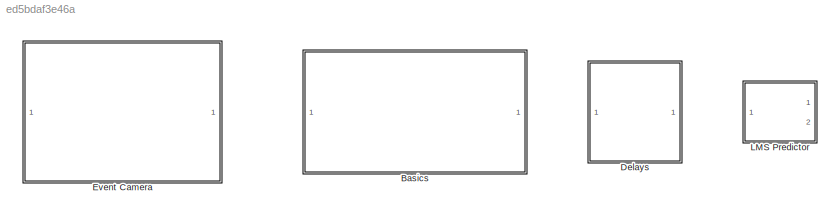
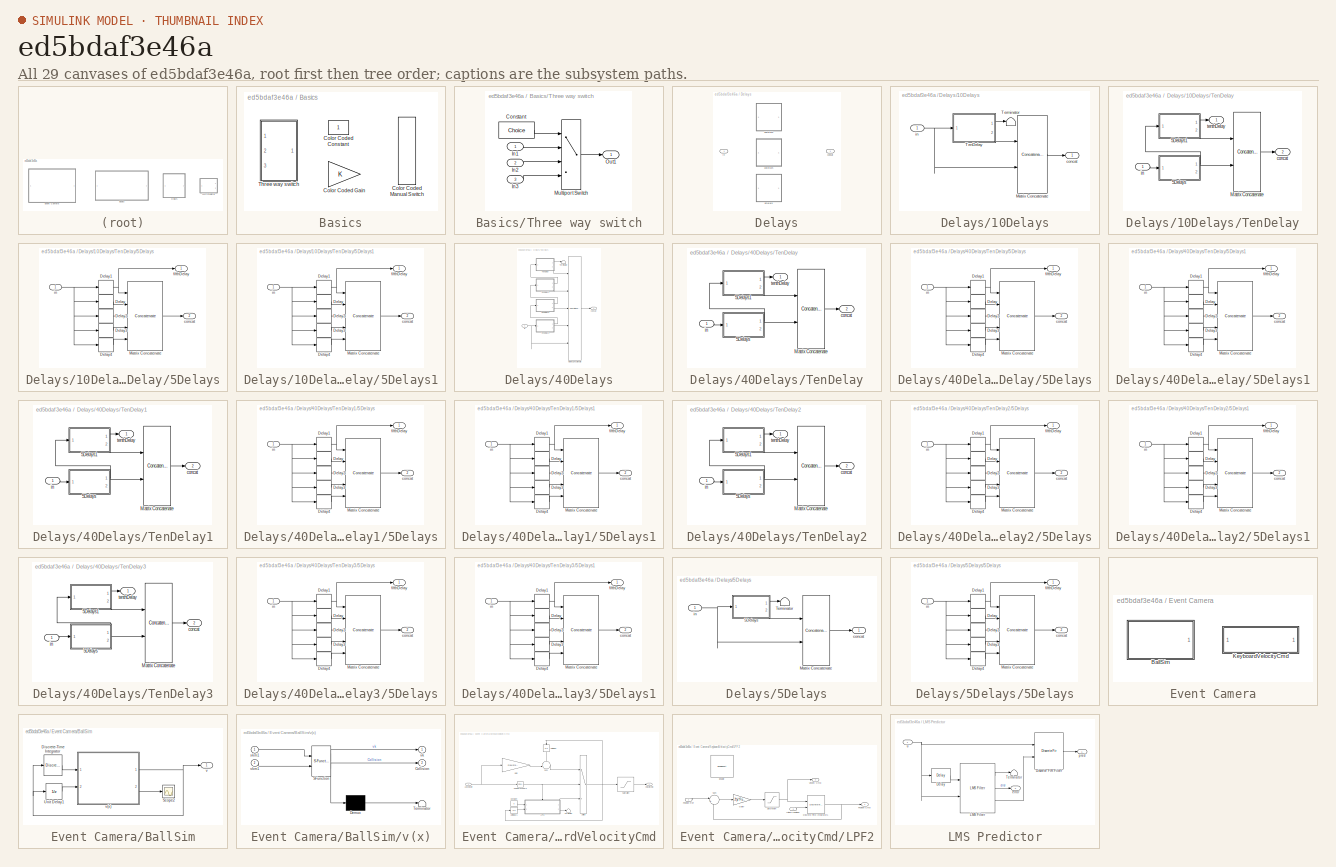
[diagram: thumbnail index - all 29 canvases of the model, root first then tree order]
MODEL slx_ed5bdaf3e46a
KIND library
CONFIG AbsTol = auto
CONFIG EnableMultiTasking = off
CONFIG FixedStep = auto
CONFIG MaxStep = auto
CONFIG MinStep = auto
CONFIG RelTol = 1e-3
CONFIG SampleTimeConstraint = Unconstrained
CONFIG SolverName = VariableStepAuto
CONFIG StartTime = 0.0
CONFIG StopTime = 10.0
BLOCK [SubSystem] Basics
  Ports = []
  RequestExecContextInheritance = off
BLOCK [Constant] Basics/Color Coded Constant
  OpenFcn = if get_param(gcbh,'value')-48 set_param(gcbh,'value','0','backgroundcolor','red');\nelse set_param(gcbh,'value','1','backgroundcolor','green');                       \nend
  OutDataTypeStr = boolean
BLOCK [Gain] Basics/Color Coded Gain
  OpenFcn = if get_param(gcbh,'gain')-48 set_param(gcbh,'gain','0','backgroundcolor','red');\nelse set_param(gcbh,'gain','1','backgroundcolor','green');                      \nend
  OutDataTypeStr = Inherit: Same as input
BLOCK [ManualSwitch] Basics/Color Coded Manual Switch
  OpenFcn = sw = get_param(gcb,'sw');\nif strcmp(sw,'1')\nset_param(gcb,'sw','0');\nelse\nset_param(gcb,'sw','1');\nend\nif strcmp(sw,'1')\n    set_param(gcb,'backgroundcolor','red')\nelse\n    set_param(gcb,'backgroundcolor','green')\nend
BLOCK [SubSystem] Basics/Three way switch
  OpenFcn = Choice=get_param(gcbh,'Choice');\nChoice=str2num(Choice)+1;\nif Choice==4, Choice=1; end\nset_param(gcbh,'Choice',num2str(Choice));
  Ports = [3, 1]
  RequestExecContextInheritance = off
BLOCK [Constant] Basics/Three way switch/Constant
  Value = Choice
BLOCK [Inport] Basics/Three way switch/In1
BLOCK [Inport] Basics/Three way switch/In2
  Port = 2
BLOCK [Inport] Basics/Three way switch/In3
  Port = 3
BLOCK [MultiPortSwitch] Basics/Three way switch/Multiport Switch
  InputSameDT = off
  Ports = [4, 1]
  SaturateOnIntegerOverflow = off
BLOCK [Outport] Basics/Three way switch/Out1
BLOCK [SubSystem] Delays
  LabelModeActiveChoice = 10Delays
  Ports = [1, 1]
  RequestExecContextInheritance = off
  Variant = on
  VariantControl = Choice
  VariantControlMode = label
BLOCK [SubSystem] Delays/10Delays
  Ports = [1, 1]
  RequestExecContextInheritance = off
  VariantControl = 10Delays
BLOCK [Concatenate] Delays/10Delays/Matrix Concatenate
  ConcatenateDimension = 4
  Mode = Multidimensional array
  Ports = [2, 1]
BLOCK [SubSystem] Delays/10Delays/TenDelay
  Ports = [1, 2]
  RequestExecContextInheritance = off
BLOCK [SubSystem] Delays/10Delays/TenDelay/5Delays
  Ports = [1, 2]
  RequestExecContextInheritance = off
BLOCK [Delay] Delays/10Delays/TenDelay/5Delays/Delay
  DelayLength = 4
  InputPortMap = u0
  Ports = [1, 1]
BLOCK [Delay] Delays/10Delays/TenDelay/5Delays/Delay1
  DelayLength = 5
  InputPortMap = u0
  Ports = [1, 1]
BLOCK [Delay] Delays/10Delays/TenDelay/5Delays/Delay2
  DelayLength = 3
  InputPortMap = u0
  Ports = [1, 1]
BLOCK [Delay] Delays/10Delays/TenDelay/5Delays/Delay3
  InputPortMap = u0
  Ports = [1, 1]
BLOCK [Delay] Delays/10Delays/TenDelay/5Delays/Delay4
  DelayLength = 1
  InputPortMap = u0
  Ports = [1, 1]
BLOCK [Concatenate] Delays/10Delays/TenDelay/5Delays/Matrix Concatenate
  ConcatenateDimension = 4
  Mode = Multidimensional array
  NumInputs = 5
  Ports = [5, 1]
BLOCK [Outport] Delays/10Delays/TenDelay/5Delays/concat
  Port = 2
BLOCK [Outport] Delays/10Delays/TenDelay/5Delays/fifthDelay
BLOCK [Inport] Delays/10Delays/TenDelay/5Delays/in
BLOCK [SubSystem] Delays/10Delays/TenDelay/5Delays1
  Ports = [1, 2]
  RequestExecContextInheritance = off
BLOCK [Delay] Delays/10Delays/TenDelay/5Delays1/Delay
  DelayLength = 4
  InputPortMap = u0
  Ports = [1, 1]
BLOCK [Delay] Delays/10Delays/TenDelay/5Delays1/Delay1
  DelayLength = 5
  InputPortMap = u0
  Ports = [1, 1]
BLOCK [Delay] Delays/10Delays/TenDelay/5Delays1/Delay2
  DelayLength = 3
  InputPortMap = u0
  Ports = [1, 1]
BLOCK [Delay] Delays/10Delays/TenDelay/5Delays1/Delay3
  InputPortMap = u0
  Ports = [1, 1]
BLOCK [Delay] Delays/10Delays/TenDelay/5Delays1/Delay4
  DelayLength = 1
  InputPortMap = u0
  Ports = [1, 1]
BLOCK [Concatenate] Delays/10Delays/TenDelay/5Delays1/Matrix Concatenate
  ConcatenateDimension = 4
  Mode = Multidimensional array
  NumInputs = 5
  Ports = [5, 1]
BLOCK [Outport] Delays/10Delays/TenDelay/5Delays1/concat
  Port = 2
BLOCK [Outport] Delays/10Delays/TenDelay/5Delays1/fifthDelay
BLOCK [Inport] Delays/10Delays/TenDelay/5Delays1/in
BLOCK [Concatenate] Delays/10Delays/TenDelay/Matrix Concatenate
  ConcatenateDimension = 4
  Mode = Multidimensional array
  Ports = [2, 1]
BLOCK [Outport] Delays/10Delays/TenDelay/concat
  Port = 2
BLOCK [Inport] Delays/10Delays/TenDelay/in
BLOCK [Outport] Delays/10Delays/TenDelay/tenthDelay
BLOCK [Terminator] Delays/10Delays/Terminator
BLOCK [Outport] Delays/10Delays/concat
BLOCK [Inport] Delays/10Delays/in
BLOCK [SubSystem] Delays/40Delays
  Ports = [1, 1]
  RequestExecContextInheritance = off
  VariantControl = 40Delays
BLOCK [Concatenate] Delays/40Delays/Matrix Concatenate
  ConcatenateDimension = 4
  Mode = Multidimensional array
  NumInputs = 5
  Ports = [5, 1]
BLOCK [SubSystem] Delays/40Delays/TenDelay
  Ports = [1, 2]
  RequestExecContextInheritance = off
BLOCK [SubSystem] Delays/40Delays/TenDelay/5Delays
  Ports = [1, 2]
  RequestExecContextInheritance = off
BLOCK [Delay] Delays/40Delays/TenDelay/5Delays/Delay
  DelayLength = 4
  InputPortMap = u0
  Ports = [1, 1]
BLOCK [Delay] Delays/40Delays/TenDelay/5Delays/Delay1
  DelayLength = 5
  InputPortMap = u0
  Ports = [1, 1]
BLOCK [Delay] Delays/40Delays/TenDelay/5Delays/Delay2
  DelayLength = 3
  InputPortMap = u0
  Ports = [1, 1]
BLOCK [Delay] Delays/40Delays/TenDelay/5Delays/Delay3
  InputPortMap = u0
  Ports = [1, 1]
BLOCK [Delay] Delays/40Delays/TenDelay/5Delays/Delay4
  DelayLength = 1
  InputPortMap = u0
  Ports = [1, 1]
BLOCK [Concatenate] Delays/40Delays/TenDelay/5Delays/Matrix Concatenate
  ConcatenateDimension = 4
  Mode = Multidimensional array
  NumInputs = 5
  Ports = [5, 1]
BLOCK [Outport] Delays/40Delays/TenDelay/5Delays/concat
  Port = 2
BLOCK [Outport] Delays/40Delays/TenDelay/5Delays/fifthDelay
BLOCK [Inport] Delays/40Delays/TenDelay/5Delays/in
BLOCK [SubSystem] Delays/40Delays/TenDelay/5Delays1
  Ports = [1, 2]
  RequestExecContextInheritance = off
BLOCK [Delay] Delays/40Delays/TenDelay/5Delays1/Delay
  DelayLength = 4
  InputPortMap = u0
  Ports = [1, 1]
BLOCK [Delay] Delays/40Delays/TenDelay/5Delays1/Delay1
  DelayLength = 5
  InputPortMap = u0
  Ports = [1, 1]
BLOCK [Delay] Delays/40Delays/TenDelay/5Delays1/Delay2
  DelayLength = 3
  InputPortMap = u0
  Ports = [1, 1]
BLOCK [Delay] Delays/40Delays/TenDelay/5Delays1/Delay3
  InputPortMap = u0
  Ports = [1, 1]
BLOCK [Delay] Delays/40Delays/TenDelay/5Delays1/Delay4
  DelayLength = 1
  InputPortMap = u0
  Ports = [1, 1]
BLOCK [Concatenate] Delays/40Delays/TenDelay/5Delays1/Matrix Concatenate
  ConcatenateDimension = 4
  Mode = Multidimensional array
  NumInputs = 5
  Ports = [5, 1]
BLOCK [Outport] Delays/40Delays/TenDelay/5Delays1/concat
  Port = 2
BLOCK [Outport] Delays/40Delays/TenDelay/5Delays1/fifthDelay
BLOCK [Inport] Delays/40Delays/TenDelay/5Delays1/in
BLOCK [Concatenate] Delays/40Delays/TenDelay/Matrix Concatenate
  ConcatenateDimension = 4
  Mode = Multidimensional array
  Ports = [2, 1]
BLOCK [Outport] Delays/40Delays/TenDelay/concat
  Port = 2
BLOCK [Inport] Delays/40Delays/TenDelay/in
BLOCK [Outport] Delays/40Delays/TenDelay/tenthDelay
BLOCK [SubSystem] Delays/40Delays/TenDelay1
  Ports = [1, 2]
  RequestExecContextInheritance = off
BLOCK [SubSystem] Delays/40Delays/TenDelay1/5Delays
  Ports = [1, 2]
  RequestExecContextInheritance = off
BLOCK [Delay] Delays/40Delays/TenDelay1/5Delays/Delay
  DelayLength = 4
  InputPortMap = u0
  Ports = [1, 1]
BLOCK [Delay] Delays/40Delays/TenDelay1/5Delays/Delay1
  DelayLength = 5
  InputPortMap = u0
  Ports = [1, 1]
BLOCK [Delay] Delays/40Delays/TenDelay1/5Delays/Delay2
  DelayLength = 3
  InputPortMap = u0
  Ports = [1, 1]
BLOCK [Delay] Delays/40Delays/TenDelay1/5Delays/Delay3
  InputPortMap = u0
  Ports = [1, 1]
BLOCK [Delay] Delays/40Delays/TenDelay1/5Delays/Delay4
  DelayLength = 1
  InputPortMap = u0
  Ports = [1, 1]
BLOCK [Concatenate] Delays/40Delays/TenDelay1/5Delays/Matrix Concatenate
  ConcatenateDimension = 4
  Mode = Multidimensional array
  NumInputs = 5
  Ports = [5, 1]
BLOCK [Outport] Delays/40Delays/TenDelay1/5Delays/concat
  Port = 2
BLOCK [Outport] Delays/40Delays/TenDelay1/5Delays/fifthDelay
BLOCK [Inport] Delays/40Delays/TenDelay1/5Delays/in
BLOCK [SubSystem] Delays/40Delays/TenDelay1/5Delays1
  Ports = [1, 2]
  RequestExecContextInheritance = off
BLOCK [Delay] Delays/40Delays/TenDelay1/5Delays1/Delay
  DelayLength = 4
  InputPortMap = u0
  Ports = [1, 1]
BLOCK [Delay] Delays/40Delays/TenDelay1/5Delays1/Delay1
  DelayLength = 5
  InputPortMap = u0
  Ports = [1, 1]
BLOCK [Delay] Delays/40Delays/TenDelay1/5Delays1/Delay2
  DelayLength = 3
  InputPortMap = u0
  Ports = [1, 1]
BLOCK [Delay] Delays/40Delays/TenDelay1/5Delays1/Delay3
  InputPortMap = u0
  Ports = [1, 1]
BLOCK [Delay] Delays/40Delays/TenDelay1/5Delays1/Delay4
  DelayLength = 1
  InputPortMap = u0
  Ports = [1, 1]
BLOCK [Concatenate] Delays/40Delays/TenDelay1/5Delays1/Matrix Concatenate
  ConcatenateDimension = 4
  Mode = Multidimensional array
  NumInputs = 5
  Ports = [5, 1]
BLOCK [Outport] Delays/40Delays/TenDelay1/5Delays1/concat
  Port = 2
BLOCK [Outport] Delays/40Delays/TenDelay1/5Delays1/fifthDelay
BLOCK [Inport] Delays/40Delays/TenDelay1/5Delays1/in
BLOCK [Concatenate] Delays/40Delays/TenDelay1/Matrix Concatenate
  ConcatenateDimension = 4
  Mode = Multidimensional array
  Ports = [2, 1]
BLOCK [Outport] Delays/40Delays/TenDelay1/concat
  Port = 2
BLOCK [Inport] Delays/40Delays/TenDelay1/in
BLOCK [Outport] Delays/40Delays/TenDelay1/tenthDelay
BLOCK [SubSystem] Delays/40Delays/TenDelay2
  Ports = [1, 2]
  RequestExecContextInheritance = off
BLOCK [SubSystem] Delays/40Delays/TenDelay2/5Delays
  Ports = [1, 2]
  RequestExecContextInheritance = off
BLOCK [Delay] Delays/40Delays/TenDelay2/5Delays/Delay
  DelayLength = 4
  InputPortMap = u0
  Ports = [1, 1]
BLOCK [Delay] Delays/40Delays/TenDelay2/5Delays/Delay1
  DelayLength = 5
  InputPortMap = u0
  Ports = [1, 1]
BLOCK [Delay] Delays/40Delays/TenDelay2/5Delays/Delay2
  DelayLength = 3
  InputPortMap = u0
  Ports = [1, 1]
BLOCK [Delay] Delays/40Delays/TenDelay2/5Delays/Delay3
  InputPortMap = u0
  Ports = [1, 1]
BLOCK [Delay] Delays/40Delays/TenDelay2/5Delays/Delay4
  DelayLength = 1
  InputPortMap = u0
  Ports = [1, 1]
BLOCK [Concatenate] Delays/40Delays/TenDelay2/5Delays/Matrix Concatenate
  ConcatenateDimension = 4
  Mode = Multidimensional array
  NumInputs = 5
  Ports = [5, 1]
BLOCK [Outport] Delays/40Delays/TenDelay2/5Delays/concat
  Port = 2
BLOCK [Outport] Delays/40Delays/TenDelay2/5Delays/fifthDelay
BLOCK [Inport] Delays/40Delays/TenDelay2/5Delays/in
BLOCK [SubSystem] Delays/40Delays/TenDelay2/5Delays1
  Ports = [1, 2]
  RequestExecContextInheritance = off
BLOCK [Delay] Delays/40Delays/TenDelay2/5Delays1/Delay
  DelayLength = 4
  InputPortMap = u0
  Ports = [1, 1]
BLOCK [Delay] Delays/40Delays/TenDelay2/5Delays1/Delay1
  DelayLength = 5
  InputPortMap = u0
  Ports = [1, 1]
BLOCK [Delay] Delays/40Delays/TenDelay2/5Delays1/Delay2
  DelayLength = 3
  InputPortMap = u0
  Ports = [1, 1]
BLOCK [Delay] Delays/40Delays/TenDelay2/5Delays1/Delay3
  InputPortMap = u0
  Ports = [1, 1]
BLOCK [Delay] Delays/40Delays/TenDelay2/5Delays1/Delay4
  DelayLength = 1
  InputPortMap = u0
  Ports = [1, 1]
BLOCK [Concatenate] Delays/40Delays/TenDelay2/5Delays1/Matrix Concatenate
  ConcatenateDimension = 4
  Mode = Multidimensional array
  NumInputs = 5
  Ports = [5, 1]
BLOCK [Outport] Delays/40Delays/TenDelay2/5Delays1/concat
  Port = 2
BLOCK [Outport] Delays/40Delays/TenDelay2/5Delays1/fifthDelay
BLOCK [Inport] Delays/40Delays/TenDelay2/5Delays1/in
BLOCK [Concatenate] Delays/40Delays/TenDelay2/Matrix Concatenate
  ConcatenateDimension = 4
  Mode = Multidimensional array
  Ports = [2, 1]
BLOCK [Outport] Delays/40Delays/TenDelay2/concat
  Port = 2
BLOCK [Inport] Delays/40Delays/TenDelay2/in
BLOCK [Outport] Delays/40Delays/TenDelay2/tenthDelay
BLOCK [SubSystem] Delays/40Delays/TenDelay3
  Ports = [1, 2]
  RequestExecContextInheritance = off
BLOCK [SubSystem] Delays/40Delays/TenDelay3/5Delays
  Ports = [1, 2]
  RequestExecContextInheritance = off
BLOCK [Delay] Delays/40Delays/TenDelay3/5Delays/Delay
  DelayLength = 4
  InputPortMap = u0
  Ports = [1, 1]
BLOCK [Delay] Delays/40Delays/TenDelay3/5Delays/Delay1
  DelayLength = 5
  InputPortMap = u0
  Ports = [1, 1]
BLOCK [Delay] Delays/40Delays/TenDelay3/5Delays/Delay2
  DelayLength = 3
  InputPortMap = u0
  Ports = [1, 1]
BLOCK [Delay] Delays/40Delays/TenDelay3/5Delays/Delay3
  InputPortMap = u0
  Ports = [1, 1]
BLOCK [Delay] Delays/40Delays/TenDelay3/5Delays/Delay4
  DelayLength = 1
  InputPortMap = u0
  Ports = [1, 1]
BLOCK [Concatenate] Delays/40Delays/TenDelay3/5Delays/Matrix Concatenate
  ConcatenateDimension = 4
  Mode = Multidimensional array
  NumInputs = 5
  Ports = [5, 1]
BLOCK [Outport] Delays/40Delays/TenDelay3/5Delays/concat
  Port = 2
BLOCK [Outport] Delays/40Delays/TenDelay3/5Delays/fifthDelay
BLOCK [Inport] Delays/40Delays/TenDelay3/5Delays/in
BLOCK [SubSystem] Delays/40Delays/TenDelay3/5Delays1
  Ports = [1, 2]
  RequestExecContextInheritance = off
BLOCK [Delay] Delays/40Delays/TenDelay3/5Delays1/Delay
  DelayLength = 4
  InputPortMap = u0
  Ports = [1, 1]
BLOCK [Delay] Delays/40Delays/TenDelay3/5Delays1/Delay1
  DelayLength = 5
  InputPortMap = u0
  Ports = [1, 1]
BLOCK [Delay] Delays/40Delays/TenDelay3/5Delays1/Delay2
  DelayLength = 3
  InputPortMap = u0
  Ports = [1, 1]
BLOCK [Delay] Delays/40Delays/TenDelay3/5Delays1/Delay3
  InputPortMap = u0
  Ports = [1, 1]
BLOCK [Delay] Delays/40Delays/TenDelay3/5Delays1/Delay4
  DelayLength = 1
  InputPortMap = u0
  Ports = [1, 1]
BLOCK [Concatenate] Delays/40Delays/TenDelay3/5Delays1/Matrix Concatenate
  ConcatenateDimension = 4
  Mode = Multidimensional array
  NumInputs = 5
  Ports = [5, 1]
BLOCK [Outport] Delays/40Delays/TenDelay3/5Delays1/concat
  Port = 2
BLOCK [Outport] Delays/40Delays/TenDelay3/5Delays1/fifthDelay
BLOCK [Inport] Delays/40Delays/TenDelay3/5Delays1/in
BLOCK [Concatenate] Delays/40Delays/TenDelay3/Matrix Concatenate
  ConcatenateDimension = 4
  Mode = Multidimensional array
  Ports = [2, 1]
BLOCK [Outport] Delays/40Delays/TenDelay3/concat
  Port = 2
BLOCK [Inport] Delays/40Delays/TenDelay3/in
BLOCK [Outport] Delays/40Delays/TenDelay3/tenthDelay
BLOCK [Terminator] Delays/40Delays/Terminator
BLOCK [Outport] Delays/40Delays/concat
BLOCK [Inport] Delays/40Delays/in
BLOCK [SubSystem] Delays/5Delays
  Ports = [1, 1]
  RequestExecContextInheritance = off
  VariantControl = 5Delays
BLOCK [SubSystem] Delays/5Delays/5Delays
  Ports = [1, 2]
  RequestExecContextInheritance = off
BLOCK [Delay] Delays/5Delays/5Delays/Delay
  DelayLength = 4
  InputPortMap = u0
  Ports = [1, 1]
BLOCK [Delay] Delays/5Delays/5Delays/Delay1
  DelayLength = 5
  InputPortMap = u0
  Ports = [1, 1]
BLOCK [Delay] Delays/5Delays/5Delays/Delay2
  DelayLength = 3
  InputPortMap = u0
  Ports = [1, 1]
BLOCK [Delay] Delays/5Delays/5Delays/Delay3
  InputPortMap = u0
  Ports = [1, 1]
BLOCK [Delay] Delays/5Delays/5Delays/Delay4
  DelayLength = 1
  InputPortMap = u0
  Ports = [1, 1]
BLOCK [Concatenate] Delays/5Delays/5Delays/Matrix Concatenate
  ConcatenateDimension = 4
  Mode = Multidimensional array
  NumInputs = 5
  Ports = [5, 1]
BLOCK [Outport] Delays/5Delays/5Delays/concat
  Port = 2
BLOCK [Outport] Delays/5Delays/5Delays/fifthDelay
BLOCK [Inport] Delays/5Delays/5Delays/in
BLOCK [Concatenate] Delays/5Delays/Matrix Concatenate
  ConcatenateDimension = 4
  Mode = Multidimensional array
  Ports = [2, 1]
BLOCK [Terminator] Delays/5Delays/Terminator
BLOCK [Outport] Delays/5Delays/concat
BLOCK [Inport] Delays/5Delays/in
BLOCK [Outport] Delays/concat
BLOCK [Inport] Delays/in
BLOCK [SubSystem] Event Camera
  Ports = []
  RequestExecContextInheritance = off
BLOCK [SubSystem] Event Camera/BallSim
  Ports = [0, 1]
  RequestExecContextInheritance = off
BLOCK [DiscreteIntegrator] Event Camera/BallSim/Discrete-Time Integrator
  ICPrevOutput = DiscIntNeverNeededParam
  ICPrevScaledInput = DiscIntNeverNeededParam
  InitialConditionSetting = Auto
  Ports = [1, 1]
  SampleTime = -1
BLOCK [Scope] Event Camera/BallSim/Scope2
  Floating = off
  NumInputPorts = 1
  Ports = [1]
  ScopeSpecificationString = Simulink.scopes.TimeScopeBlockCfg('CurrentConfiguration', extmgr.ConfigurationSet(extmgr.Configuration('Core','General UI',true),extmgr.Configuration('Core','Source UI',true),extmgr.Configuration('Sources','WiredSimulink',true,'DataLoggingVariableName','ScopeData2'),extmgr.Configuration('Visuals','Time Domain',true,'SerializedDisplays',{struct('MinYLimReal','-0.125','MaxYLimReal','1.125','YLabelRe...<+1438ch>
BLOCK [UnitDelay] Event Camera/BallSim/Unit Delay1
  HasFrameUpgradeWarning = on
  SampleTime = -1
BLOCK [Outport] Event Camera/BallSim/v
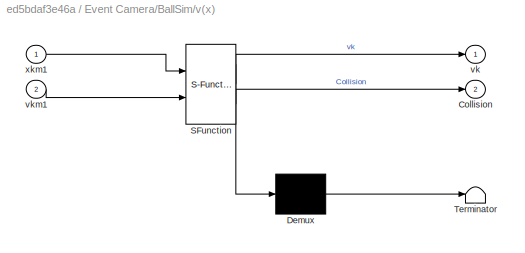
BLOCK [SubSystem] Event Camera/BallSim/v(x)
  ErrorFcn = Stateflow.Translate.translate
  PermitHierarchicalResolution = ExplicitOnly
  Ports = [2, 2]
  RequestExecContextInheritance = off
  SFBlockType = Chart
  TreatAsAtomicUnit = on
BLOCK [Demux] Event Camera/BallSim/v(x)/ Demux 
  Outputs = 1
  Ports = [1, 1]
BLOCK [S-Function] Event Camera/BallSim/v(x)/ SFunction 
  EnableBusSupport = off
  FunctionName = sf_sfun
  Parameters = Tswitch,vlim,xlim
  PortCounts = [2 3]
  Ports = [2, 3]
  SFcnIsStateOwnerBlock = off
  SFunctionDeploymentMode = off
  Tag = Stateflow S-Function 3
BLOCK [Terminator] Event Camera/BallSim/v(x)/ Terminator 
BLOCK [Outport] Event Camera/BallSim/v(x)/Collision
  Port = 2
BLOCK [Outport] Event Camera/BallSim/v(x)/vk
BLOCK [Inport] Event Camera/BallSim/v(x)/vkm1
  Port = 2
BLOCK [Inport] Event Camera/BallSim/v(x)/xkm1
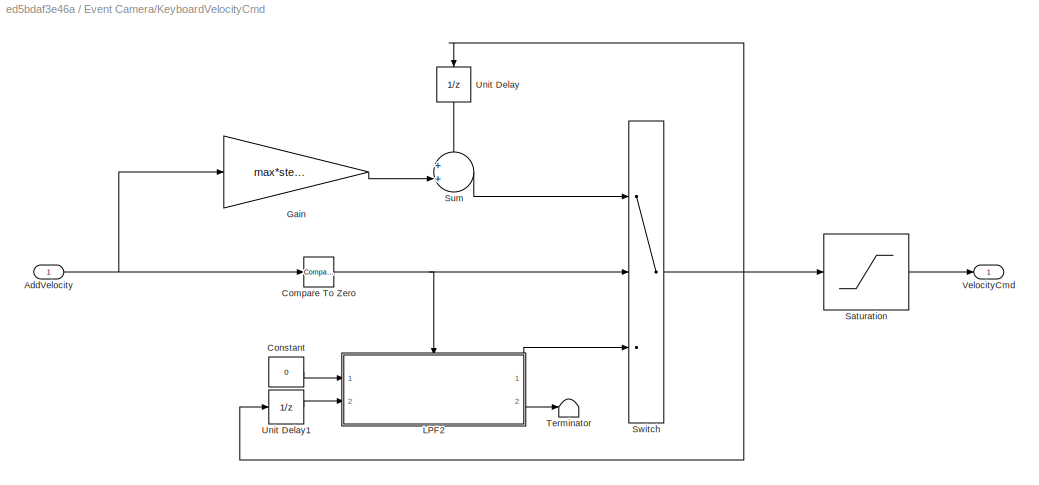
BLOCK [SubSystem] Event Camera/KeyboardVelocityCmd
  Ports = [1, 1]
  RequestExecContextInheritance = off
BLOCK [Inport] Event Camera/KeyboardVelocityCmd/AddVelocity
BLOCK [Reference] Event Camera/KeyboardVelocityCmd/Compare To Zero  REF=simulink/Logic and Bit
Operations/Compare
To Zero
  Ports = [1, 1]
  SourceBlock = simulink/Logic and Bit\nOperations/Compare\nTo Zero
  SourceProductBaseCode = SL
  SourceType = Compare To Zero
BLOCK [Constant] Event Camera/KeyboardVelocityCmd/Constant
  OutDataTypeStr = Inherit: Inherit via back propagation
  Value = 0
BLOCK [Gain] Event Camera/KeyboardVelocityCmd/Gain
  Gain = max*step_percentile
BLOCK [SubSystem] Event Camera/KeyboardVelocityCmd/LPF2
  Ports = [2, 2, 1]
  RequestExecContextInheritance = off
BLOCK [DiscreteIntegrator] Event Camera/KeyboardVelocityCmd/LPF2/Discrete-Time Integrator1
  ICPrevOutput = DiscIntNeverNeededParam
  ICPrevScaledInput = DiscIntNeverNeededParam
  InitialConditionSetting = Auto
  InitialConditionSource = external
  Ports = [2, 1]
  SampleTime = -1
BLOCK [EnablePort] Event Camera/KeyboardVelocityCmd/LPF2/Enable
  Ports = []
  StatesWhenEnabling = reset
BLOCK [Gain] Event Camera/KeyboardVelocityCmd/LPF2/Gain7
  Gain = 2*pi*PosBW
BLOCK [Inport] Event Camera/KeyboardVelocityCmd/LPF2/Initial Condition
  Port = 2
BLOCK [Outport] Event Camera/KeyboardVelocityCmd/LPF2/Position Cmd
  VectorParamsAs1DForOutWhenUnconnected = off
BLOCK [Inport] Event Camera/KeyboardVelocityCmd/LPF2/Position Ref
BLOCK [Saturate] Event Camera/KeyboardVelocityCmd/LPF2/Saturation
  LowerLimit = Vel_Min
  UpperLimit = Vel_Max
BLOCK [Sum] Event Camera/KeyboardVelocityCmd/LPF2/Sum
  Inputs = |+-
  Ports = [2, 1]
BLOCK [Outport] Event Camera/KeyboardVelocityCmd/LPF2/Veocity Cmd
  Port = 2
  VectorParamsAs1DForOutWhenUnconnected = off
BLOCK [Saturate] Event Camera/KeyboardVelocityCmd/Saturation
  LowerLimit = -max
  UpperLimit = max
BLOCK [Sum] Event Camera/KeyboardVelocityCmd/Sum
  Inputs = ++|
  Ports = [2, 1]
BLOCK [Switch] Event Camera/KeyboardVelocityCmd/Switch
  Criteria = u2 > Threshold
  InputSameDT = off
  SaturateOnIntegerOverflow = off
BLOCK [Terminator] Event Camera/KeyboardVelocityCmd/Terminator
BLOCK [UnitDelay] Event Camera/KeyboardVelocityCmd/Unit Delay
  HasFrameUpgradeWarning = on
  NameLocation = left
  SampleTime = -1
BLOCK [UnitDelay] Event Camera/KeyboardVelocityCmd/Unit Delay1
  HasFrameUpgradeWarning = on
  SampleTime = -1
BLOCK [Outport] Event Camera/KeyboardVelocityCmd/VelocityCmd
BLOCK [SubSystem] LMS Predictor
  Ports = [1, 2]
  RequestExecContextInheritance = off
BLOCK [Delay] LMS Predictor/Delay
  DelayLength = EstimatedDelay
  InputPortMap = u0
  Ports = [1, 1]
BLOCK [DiscreteFir] LMS Predictor/Discrete FIR Filter
  CoefSource = Input port
  InputPortMap = u0,u1
  InputProcessing = Columns as channels (frame based)
  OutputPortMap = o0
  Ports = [2, 1]
BLOCK [Reference] LMS Predictor/LMS Filter  REF=dspadpt3/LMS Filter
  Ports = [2, 3]
  SourceBlock = dspadpt3/LMS Filter
  SourceProductName = DSP System Toolbox
  SourceType = LMS Filter
BLOCK [Terminator] LMS Predictor/Terminator
BLOCK [Outport] LMS Predictor/error
  Port = 2
BLOCK [Outport] LMS Predictor/pred
BLOCK [Inport] LMS Predictor/u
LINE Basics/Three way switch/Constant:1 -> Basics/Three way switch/Multiport Switch:1
LINE Basics/Three way switch/In1:1 -> Basics/Three way switch/Multiport Switch:2
LINE Basics/Three way switch/In2:1 -> Basics/Three way switch/Multiport Switch:3
LINE Basics/Three way switch/In3:1 -> Basics/Three way switch/Multiport Switch:4
LINE Basics/Three way switch/Multiport Switch:1 -> Basics/Three way switch/Out1:1
LINE Delays/10Delays/Matrix Concatenate:1 -> Delays/10Delays/concat:1
NET Delays/10Delays/TenDelay/5Delays/Delay1:1 -> Delays/10Delays/TenDelay/5Delays/Matrix Concatenate:1, Delays/10Delays/TenDelay/5Delays/fifthDelay:1
LINE Delays/10Delays/TenDelay/5Delays/Delay2:1 -> Delays/10Delays/TenDelay/5Delays/Matrix Concatenate:3
LINE Delays/10Delays/TenDelay/5Delays/Delay3:1 -> Delays/10Delays/TenDelay/5Delays/Matrix Concatenate:4
LINE Delays/10Delays/TenDelay/5Delays/Delay4:1 -> Delays/10Delays/TenDelay/5Delays/Matrix Concatenate:5
LINE Delays/10Delays/TenDelay/5Delays/Delay:1 -> Delays/10Delays/TenDelay/5Delays/Matrix Concatenate:2
LINE Delays/10Delays/TenDelay/5Delays/Matrix Concatenate:1 -> Delays/10Delays/TenDelay/5Delays/concat:1
NET Delays/10Delays/TenDelay/5Delays/in:1 -> Delays/10Delays/TenDelay/5Delays/Delay1:1, Delays/10Delays/TenDelay/5Delays/Delay2:1, Delays/10Delays/TenDelay/5Delays/Delay3:1, Delays/10Delays/TenDelay/5Delays/Delay4:1, Delays/10Delays/TenDelay/5Delays/Delay:1
NET Delays/10Delays/TenDelay/5Delays1/Delay1:1 -> Delays/10Delays/TenDelay/5Delays1/Matrix Concatenate:1, Delays/10Delays/TenDelay/5Delays1/fifthDelay:1
LINE Delays/10Delays/TenDelay/5Delays1/Delay2:1 -> Delays/10Delays/TenDelay/5Delays1/Matrix Concatenate:3
LINE Delays/10Delays/TenDelay/5Delays1/Delay3:1 -> Delays/10Delays/TenDelay/5Delays1/Matrix Concatenate:4
LINE Delays/10Delays/TenDelay/5Delays1/Delay4:1 -> Delays/10Delays/TenDelay/5Delays1/Matrix Concatenate:5
LINE Delays/10Delays/TenDelay/5Delays1/Delay:1 -> Delays/10Delays/TenDelay/5Delays1/Matrix Concatenate:2
LINE Delays/10Delays/TenDelay/5Delays1/Matrix Concatenate:1 -> Delays/10Delays/TenDelay/5Delays1/concat:1
NET Delays/10Delays/TenDelay/5Delays1/in:1 -> Delays/10Delays/TenDelay/5Delays1/Delay1:1, Delays/10Delays/TenDelay/5Delays1/Delay2:1, Delays/10Delays/TenDelay/5Delays1/Delay3:1, Delays/10Delays/TenDelay/5Delays1/Delay4:1, Delays/10Delays/TenDelay/5Delays1/Delay:1
LINE Delays/10Delays/TenDelay/5Delays1:1 -> Delays/10Delays/TenDelay/tenthDelay:1
LINE Delays/10Delays/TenDelay/5Delays1:2 -> Delays/10Delays/TenDelay/Matrix Concatenate:1
LINE Delays/10Delays/TenDelay/5Delays:1 -> Delays/10Delays/TenDelay/5Delays1:1
LINE Delays/10Delays/TenDelay/5Delays:2 -> Delays/10Delays/TenDelay/Matrix Concatenate:2
LINE Delays/10Delays/TenDelay/Matrix Concatenate:1 -> Delays/10Delays/TenDelay/concat:1
LINE Delays/10Delays/TenDelay/in:1 -> Delays/10Delays/TenDelay/5Delays:1
LINE Delays/10Delays/TenDelay:1 -> Delays/10Delays/Terminator:1
LINE Delays/10Delays/TenDelay:2 -> Delays/10Delays/Matrix Concatenate:1
NET Delays/10Delays/in:1 -> Delays/10Delays/Matrix Concatenate:2, Delays/10Delays/TenDelay:1
LINE Delays/40Delays/Matrix Concatenate:1 -> Delays/40Delays/concat:1
NET Delays/40Delays/TenDelay/5Delays/Delay1:1 -> Delays/40Delays/TenDelay/5Delays/Matrix Concatenate:1, Delays/40Delays/TenDelay/5Delays/fifthDelay:1
LINE Delays/40Delays/TenDelay/5Delays/Delay2:1 -> Delays/40Delays/TenDelay/5Delays/Matrix Concatenate:3
LINE Delays/40Delays/TenDelay/5Delays/Delay3:1 -> Delays/40Delays/TenDelay/5Delays/Matrix Concatenate:4
LINE Delays/40Delays/TenDelay/5Delays/Delay4:1 -> Delays/40Delays/TenDelay/5Delays/Matrix Concatenate:5
LINE Delays/40Delays/TenDelay/5Delays/Delay:1 -> Delays/40Delays/TenDelay/5Delays/Matrix Concatenate:2
LINE Delays/40Delays/TenDelay/5Delays/Matrix Concatenate:1 -> Delays/40Delays/TenDelay/5Delays/concat:1
NET Delays/40Delays/TenDelay/5Delays/in:1 -> Delays/40Delays/TenDelay/5Delays/Delay1:1, Delays/40Delays/TenDelay/5Delays/Delay2:1, Delays/40Delays/TenDelay/5Delays/Delay3:1, Delays/40Delays/TenDelay/5Delays/Delay4:1, Delays/40Delays/TenDelay/5Delays/Delay:1
NET Delays/40Delays/TenDelay/5Delays1/Delay1:1 -> Delays/40Delays/TenDelay/5Delays1/Matrix Concatenate:1, Delays/40Delays/TenDelay/5Delays1/fifthDelay:1
LINE Delays/40Delays/TenDelay/5Delays1/Delay2:1 -> Delays/40Delays/TenDelay/5Delays1/Matrix Concatenate:3
LINE Delays/40Delays/TenDelay/5Delays1/Delay3:1 -> Delays/40Delays/TenDelay/5Delays1/Matrix Concatenate:4
LINE Delays/40Delays/TenDelay/5Delays1/Delay4:1 -> Delays/40Delays/TenDelay/5Delays1/Matrix Concatenate:5
LINE Delays/40Delays/TenDelay/5Delays1/Delay:1 -> Delays/40Delays/TenDelay/5Delays1/Matrix Concatenate:2
LINE Delays/40Delays/TenDelay/5Delays1/Matrix Concatenate:1 -> Delays/40Delays/TenDelay/5Delays1/concat:1
NET Delays/40Delays/TenDelay/5Delays1/in:1 -> Delays/40Delays/TenDelay/5Delays1/Delay1:1, Delays/40Delays/TenDelay/5Delays1/Delay2:1, Delays/40Delays/TenDelay/5Delays1/Delay3:1, Delays/40Delays/TenDelay/5Delays1/Delay4:1, Delays/40Delays/TenDelay/5Delays1/Delay:1
LINE Delays/40Delays/TenDelay/5Delays1:1 -> Delays/40Delays/TenDelay/tenthDelay:1
LINE Delays/40Delays/TenDelay/5Delays1:2 -> Delays/40Delays/TenDelay/Matrix Concatenate:1
LINE Delays/40Delays/TenDelay/5Delays:1 -> Delays/40Delays/TenDelay/5Delays1:1
LINE Delays/40Delays/TenDelay/5Delays:2 -> Delays/40Delays/TenDelay/Matrix Concatenate:2
LINE Delays/40Delays/TenDelay/Matrix Concatenate:1 -> Delays/40Delays/TenDelay/concat:1
LINE Delays/40Delays/TenDelay/in:1 -> Delays/40Delays/TenDelay/5Delays:1
NET Delays/40Delays/TenDelay1/5Delays/Delay1:1 -> Delays/40Delays/TenDelay1/5Delays/Matrix Concatenate:1, Delays/40Delays/TenDelay1/5Delays/fifthDelay:1
LINE Delays/40Delays/TenDelay1/5Delays/Delay2:1 -> Delays/40Delays/TenDelay1/5Delays/Matrix Concatenate:3
LINE Delays/40Delays/TenDelay1/5Delays/Delay3:1 -> Delays/40Delays/TenDelay1/5Delays/Matrix Concatenate:4
LINE Delays/40Delays/TenDelay1/5Delays/Delay4:1 -> Delays/40Delays/TenDelay1/5Delays/Matrix Concatenate:5
LINE Delays/40Delays/TenDelay1/5Delays/Delay:1 -> Delays/40Delays/TenDelay1/5Delays/Matrix Concatenate:2
LINE Delays/40Delays/TenDelay1/5Delays/Matrix Concatenate:1 -> Delays/40Delays/TenDelay1/5Delays/concat:1
NET Delays/40Delays/TenDelay1/5Delays/in:1 -> Delays/40Delays/TenDelay1/5Delays/Delay1:1, Delays/40Delays/TenDelay1/5Delays/Delay2:1, Delays/40Delays/TenDelay1/5Delays/Delay3:1, Delays/40Delays/TenDelay1/5Delays/Delay4:1, Delays/40Delays/TenDelay1/5Delays/Delay:1
NET Delays/40Delays/TenDelay1/5Delays1/Delay1:1 -> Delays/40Delays/TenDelay1/5Delays1/Matrix Concatenate:1, Delays/40Delays/TenDelay1/5Delays1/fifthDelay:1
LINE Delays/40Delays/TenDelay1/5Delays1/Delay2:1 -> Delays/40Delays/TenDelay1/5Delays1/Matrix Concatenate:3
LINE Delays/40Delays/TenDelay1/5Delays1/Delay3:1 -> Delays/40Delays/TenDelay1/5Delays1/Matrix Concatenate:4
LINE Delays/40Delays/TenDelay1/5Delays1/Delay4:1 -> Delays/40Delays/TenDelay1/5Delays1/Matrix Concatenate:5
LINE Delays/40Delays/TenDelay1/5Delays1/Delay:1 -> Delays/40Delays/TenDelay1/5Delays1/Matrix Concatenate:2
LINE Delays/40Delays/TenDelay1/5Delays1/Matrix Concatenate:1 -> Delays/40Delays/TenDelay1/5Delays1/concat:1
NET Delays/40Delays/TenDelay1/5Delays1/in:1 -> Delays/40Delays/TenDelay1/5Delays1/Delay1:1, Delays/40Delays/TenDelay1/5Delays1/Delay2:1, Delays/40Delays/TenDelay1/5Delays1/Delay3:1, Delays/40Delays/TenDelay1/5Delays1/Delay4:1, Delays/40Delays/TenDelay1/5Delays1/Delay:1
LINE Delays/40Delays/TenDelay1/5Delays1:1 -> Delays/40Delays/TenDelay1/tenthDelay:1
LINE Delays/40Delays/TenDelay1/5Delays1:2 -> Delays/40Delays/TenDelay1/Matrix Concatenate:1
LINE Delays/40Delays/TenDelay1/5Delays:1 -> Delays/40Delays/TenDelay1/5Delays1:1
LINE Delays/40Delays/TenDelay1/5Delays:2 -> Delays/40Delays/TenDelay1/Matrix Concatenate:2
LINE Delays/40Delays/TenDelay1/Matrix Concatenate:1 -> Delays/40Delays/TenDelay1/concat:1
LINE Delays/40Delays/TenDelay1/in:1 -> Delays/40Delays/TenDelay1/5Delays:1
LINE Delays/40Delays/TenDelay1:1 -> Delays/40Delays/TenDelay:1
LINE Delays/40Delays/TenDelay1:2 -> Delays/40Delays/Matrix Concatenate:2
NET Delays/40Delays/TenDelay2/5Delays/Delay1:1 -> Delays/40Delays/TenDelay2/5Delays/Matrix Concatenate:1, Delays/40Delays/TenDelay2/5Delays/fifthDelay:1
LINE Delays/40Delays/TenDelay2/5Delays/Delay2:1 -> Delays/40Delays/TenDelay2/5Delays/Matrix Concatenate:3
LINE Delays/40Delays/TenDelay2/5Delays/Delay3:1 -> Delays/40Delays/TenDelay2/5Delays/Matrix Concatenate:4
LINE Delays/40Delays/TenDelay2/5Delays/Delay4:1 -> Delays/40Delays/TenDelay2/5Delays/Matrix Concatenate:5
LINE Delays/40Delays/TenDelay2/5Delays/Delay:1 -> Delays/40Delays/TenDelay2/5Delays/Matrix Concatenate:2
LINE Delays/40Delays/TenDelay2/5Delays/Matrix Concatenate:1 -> Delays/40Delays/TenDelay2/5Delays/concat:1
NET Delays/40Delays/TenDelay2/5Delays/in:1 -> Delays/40Delays/TenDelay2/5Delays/Delay1:1, Delays/40Delays/TenDelay2/5Delays/Delay2:1, Delays/40Delays/TenDelay2/5Delays/Delay3:1, Delays/40Delays/TenDelay2/5Delays/Delay4:1, Delays/40Delays/TenDelay2/5Delays/Delay:1
NET Delays/40Delays/TenDelay2/5Delays1/Delay1:1 -> Delays/40Delays/TenDelay2/5Delays1/Matrix Concatenate:1, Delays/40Delays/TenDelay2/5Delays1/fifthDelay:1
LINE Delays/40Delays/TenDelay2/5Delays1/Delay2:1 -> Delays/40Delays/TenDelay2/5Delays1/Matrix Concatenate:3
LINE Delays/40Delays/TenDelay2/5Delays1/Delay3:1 -> Delays/40Delays/TenDelay2/5Delays1/Matrix Concatenate:4
LINE Delays/40Delays/TenDelay2/5Delays1/Delay4:1 -> Delays/40Delays/TenDelay2/5Delays1/Matrix Concatenate:5
LINE Delays/40Delays/TenDelay2/5Delays1/Delay:1 -> Delays/40Delays/TenDelay2/5Delays1/Matrix Concatenate:2
LINE Delays/40Delays/TenDelay2/5Delays1/Matrix Concatenate:1 -> Delays/40Delays/TenDelay2/5Delays1/concat:1
NET Delays/40Delays/TenDelay2/5Delays1/in:1 -> Delays/40Delays/TenDelay2/5Delays1/Delay1:1, Delays/40Delays/TenDelay2/5Delays1/Delay2:1, Delays/40Delays/TenDelay2/5Delays1/Delay3:1, Delays/40Delays/TenDelay2/5Delays1/Delay4:1, Delays/40Delays/TenDelay2/5Delays1/Delay:1
LINE Delays/40Delays/TenDelay2/5Delays1:1 -> Delays/40Delays/TenDelay2/tenthDelay:1
LINE Delays/40Delays/TenDelay2/5Delays1:2 -> Delays/40Delays/TenDelay2/Matrix Concatenate:1
LINE Delays/40Delays/TenDelay2/5Delays:1 -> Delays/40Delays/TenDelay2/5Delays1:1
LINE Delays/40Delays/TenDelay2/5Delays:2 -> Delays/40Delays/TenDelay2/Matrix Concatenate:2
LINE Delays/40Delays/TenDelay2/Matrix Concatenate:1 -> Delays/40Delays/TenDelay2/concat:1
LINE Delays/40Delays/TenDelay2/in:1 -> Delays/40Delays/TenDelay2/5Delays:1
LINE Delays/40Delays/TenDelay2:1 -> Delays/40Delays/TenDelay1:1
LINE Delays/40Delays/TenDelay2:2 -> Delays/40Delays/Matrix Concatenate:3
NET Delays/40Delays/TenDelay3/5Delays/Delay1:1 -> Delays/40Delays/TenDelay3/5Delays/Matrix Concatenate:1, Delays/40Delays/TenDelay3/5Delays/fifthDelay:1
LINE Delays/40Delays/TenDelay3/5Delays/Delay2:1 -> Delays/40Delays/TenDelay3/5Delays/Matrix Concatenate:3
LINE Delays/40Delays/TenDelay3/5Delays/Delay3:1 -> Delays/40Delays/TenDelay3/5Delays/Matrix Concatenate:4
LINE Delays/40Delays/TenDelay3/5Delays/Delay4:1 -> Delays/40Delays/TenDelay3/5Delays/Matrix Concatenate:5
LINE Delays/40Delays/TenDelay3/5Delays/Delay:1 -> Delays/40Delays/TenDelay3/5Delays/Matrix Concatenate:2
LINE Delays/40Delays/TenDelay3/5Delays/Matrix Concatenate:1 -> Delays/40Delays/TenDelay3/5Delays/concat:1
NET Delays/40Delays/TenDelay3/5Delays/in:1 -> Delays/40Delays/TenDelay3/5Delays/Delay1:1, Delays/40Delays/TenDelay3/5Delays/Delay2:1, Delays/40Delays/TenDelay3/5Delays/Delay3:1, Delays/40Delays/TenDelay3/5Delays/Delay4:1, Delays/40Delays/TenDelay3/5Delays/Delay:1
NET Delays/40Delays/TenDelay3/5Delays1/Delay1:1 -> Delays/40Delays/TenDelay3/5Delays1/Matrix Concatenate:1, Delays/40Delays/TenDelay3/5Delays1/fifthDelay:1
LINE Delays/40Delays/TenDelay3/5Delays1/Delay2:1 -> Delays/40Delays/TenDelay3/5Delays1/Matrix Concatenate:3
LINE Delays/40Delays/TenDelay3/5Delays1/Delay3:1 -> Delays/40Delays/TenDelay3/5Delays1/Matrix Concatenate:4
LINE Delays/40Delays/TenDelay3/5Delays1/Delay4:1 -> Delays/40Delays/TenDelay3/5Delays1/Matrix Concatenate:5
LINE Delays/40Delays/TenDelay3/5Delays1/Delay:1 -> Delays/40Delays/TenDelay3/5Delays1/Matrix Concatenate:2
LINE Delays/40Delays/TenDelay3/5Delays1/Matrix Concatenate:1 -> Delays/40Delays/TenDelay3/5Delays1/concat:1
NET Delays/40Delays/TenDelay3/5Delays1/in:1 -> Delays/40Delays/TenDelay3/5Delays1/Delay1:1, Delays/40Delays/TenDelay3/5Delays1/Delay2:1, Delays/40Delays/TenDelay3/5Delays1/Delay3:1, Delays/40Delays/TenDelay3/5Delays1/Delay4:1, Delays/40Delays/TenDelay3/5Delays1/Delay:1
LINE Delays/40Delays/TenDelay3/5Delays1:1 -> Delays/40Delays/TenDelay3/tenthDelay:1
LINE Delays/40Delays/TenDelay3/5Delays1:2 -> Delays/40Delays/TenDelay3/Matrix Concatenate:1
LINE Delays/40Delays/TenDelay3/5Delays:1 -> Delays/40Delays/TenDelay3/5Delays1:1
LINE Delays/40Delays/TenDelay3/5Delays:2 -> Delays/40Delays/TenDelay3/Matrix Concatenate:2
LINE Delays/40Delays/TenDelay3/Matrix Concatenate:1 -> Delays/40Delays/TenDelay3/concat:1
LINE Delays/40Delays/TenDelay3/in:1 -> Delays/40Delays/TenDelay3/5Delays:1
LINE Delays/40Delays/TenDelay3:1 -> Delays/40Delays/TenDelay2:1
LINE Delays/40Delays/TenDelay3:2 -> Delays/40Delays/Matrix Concatenate:4
LINE Delays/40Delays/TenDelay:1 -> Delays/40Delays/Terminator:1
LINE Delays/40Delays/TenDelay:2 -> Delays/40Delays/Matrix Concatenate:1
NET Delays/40Delays/in:1 -> Delays/40Delays/Matrix Concatenate:5, Delays/40Delays/TenDelay3:1
NET Delays/5Delays/5Delays/Delay1:1 -> Delays/5Delays/5Delays/Matrix Concatenate:1, Delays/5Delays/5Delays/fifthDelay:1
LINE Delays/5Delays/5Delays/Delay2:1 -> Delays/5Delays/5Delays/Matrix Concatenate:3
LINE Delays/5Delays/5Delays/Delay3:1 -> Delays/5Delays/5Delays/Matrix Concatenate:4
LINE Delays/5Delays/5Delays/Delay4:1 -> Delays/5Delays/5Delays/Matrix Concatenate:5
LINE Delays/5Delays/5Delays/Delay:1 -> Delays/5Delays/5Delays/Matrix Concatenate:2
LINE Delays/5Delays/5Delays/Matrix Concatenate:1 -> Delays/5Delays/5Delays/concat:1
NET Delays/5Delays/5Delays/in:1 -> Delays/5Delays/5Delays/Delay1:1, Delays/5Delays/5Delays/Delay2:1, Delays/5Delays/5Delays/Delay3:1, Delays/5Delays/5Delays/Delay4:1, Delays/5Delays/5Delays/Delay:1
LINE Delays/5Delays/5Delays:1 -> Delays/5Delays/Terminator:1
LINE Delays/5Delays/5Delays:2 -> Delays/5Delays/Matrix Concatenate:1
LINE Delays/5Delays/Matrix Concatenate:1 -> Delays/5Delays/concat:1
NET Delays/5Delays/in:1 -> Delays/5Delays/5Delays:1, Delays/5Delays/Matrix Concatenate:2
LINE Event Camera/BallSim/Discrete-Time Integrator:1 -> Event Camera/BallSim/v(x):1
LINE Event Camera/BallSim/Unit Delay1:1 -> Event Camera/BallSim/v(x):2
NET Event Camera/BallSim/v(x):1 -> Event Camera/BallSim/Discrete-Time Integrator:1, Event Camera/BallSim/Unit Delay1:1, Event Camera/BallSim/v:1
LINE Event Camera/BallSim/v(x):2 -> Event Camera/BallSim/Scope2:1
NET Event Camera/KeyboardVelocityCmd/AddVelocity:1 -> Event Camera/KeyboardVelocityCmd/Compare To Zero:1, Event Camera/KeyboardVelocityCmd/Gain:1
NET Event Camera/KeyboardVelocityCmd/Compare To Zero:1 -> Event Camera/KeyboardVelocityCmd/LPF2:enable, Event Camera/KeyboardVelocityCmd/Switch:2
LINE Event Camera/KeyboardVelocityCmd/Constant:1 -> Event Camera/KeyboardVelocityCmd/LPF2:1
LINE Event Camera/KeyboardVelocityCmd/Gain:1 -> Event Camera/KeyboardVelocityCmd/Sum:2
NET Event Camera/KeyboardVelocityCmd/LPF2/Discrete-Time Integrator1:1 -> Event Camera/KeyboardVelocityCmd/LPF2/Position Cmd:1, Event Camera/KeyboardVelocityCmd/LPF2/Sum:2
LINE Event Camera/KeyboardVelocityCmd/LPF2/Gain7:1 -> Event Camera/KeyboardVelocityCmd/LPF2/Saturation:1
LINE Event Camera/KeyboardVelocityCmd/LPF2/Initial Condition:1 -> Event Camera/KeyboardVelocityCmd/LPF2/Discrete-Time Integrator1:2
LINE Event Camera/KeyboardVelocityCmd/LPF2/Position Ref:1 -> Event Camera/KeyboardVelocityCmd/LPF2/Sum:1
NET Event Camera/KeyboardVelocityCmd/LPF2/Saturation:1 -> Event Camera/KeyboardVelocityCmd/LPF2/Discrete-Time Integrator1:1, Event Camera/KeyboardVelocityCmd/LPF2/Veocity Cmd:1
LINE Event Camera/KeyboardVelocityCmd/LPF2/Sum:1 -> Event Camera/KeyboardVelocityCmd/LPF2/Gain7:1
LINE Event Camera/KeyboardVelocityCmd/LPF2:1 -> Event Camera/KeyboardVelocityCmd/Switch:3
LINE Event Camera/KeyboardVelocityCmd/LPF2:2 -> Event Camera/KeyboardVelocityCmd/Terminator:1
LINE Event Camera/KeyboardVelocityCmd/Saturation:1 -> Event Camera/KeyboardVelocityCmd/VelocityCmd:1
LINE Event Camera/KeyboardVelocityCmd/Sum:1 -> Event Camera/KeyboardVelocityCmd/Switch:1
NET Event Camera/KeyboardVelocityCmd/Switch:1 -> Event Camera/KeyboardVelocityCmd/Saturation:1, Event Camera/KeyboardVelocityCmd/Unit Delay1:1, Event Camera/KeyboardVelocityCmd/Unit Delay:1
LINE Event Camera/KeyboardVelocityCmd/Unit Delay1:1 -> Event Camera/KeyboardVelocityCmd/LPF2:2
LINE Event Camera/KeyboardVelocityCmd/Unit Delay:1 -> Event Camera/KeyboardVelocityCmd/Sum:1
LINE LMS Predictor/Delay:1 -> LMS Predictor/LMS Filter:1
LINE LMS Predictor/Discrete FIR Filter:1 -> LMS Predictor/pred:1
LINE LMS Predictor/LMS Filter:1 -> LMS Predictor/Terminator:1
LINE LMS Predictor/LMS Filter:2 -> LMS Predictor/error:1
LINE LMS Predictor/LMS Filter:3 -> LMS Predictor/Discrete FIR Filter:2
NET LMS Predictor/u:1 -> LMS Predictor/Delay:1, LMS Predictor/Discrete FIR Filter:1, LMS Predictor/LMS Filter:2
note: NET lines group one-source signal fan-out (src -> all destinations, sorted); 1:1 wires keep LINE
CHART Event Camera/BallSim/v(x) states=6 transitions=10
  STATE_LABEL 'OffEdge\nentry:\nvnorm=vecnorm(vkm1);\nif vnorm~=0\n    normal=-vkm1/(vnorm);\nelse\n    normal=ComputeNormal(xkm1);\nend\nvk=UpdateV(vkm1,normal);'
  STATE_LABEL 'Moving\nduring:\nvk=vkm1;\nCollision=false;'
  STATE_LABEL "OnEdge\nentry:\nnormal=ComputeNormal(xkm1);\nif (vkm1'*normal)<0\n    Collision=true;\n    vk=UpdateV(vkm1,normal);\nend"
  STATE_LABEL 'Q=QOnEdge(x)'
  STATE_LABEL 'SCRIPT:\nfunction Q=QOnEdge(x)\n\nif x(1)>xlim(1) && x(1)<xlim(2)\n    Q=false;\nelse\n    Q=true;\nend\n'
  STATE_LABEL 'v_out=UpdateV(v_in,n)'
  STATE_LABEL "SCRIPT:\nfunction v_out=UpdateV(v_in,n)\n%written for N dimensions, but used with one\nv_mirror=v_in-2*(v_in'*n)*n;\nvabs=abs(vlim(1)+diff(vlim)*rand);% max(rand*vlim(2),vlim(1));\nv_out = v_mirror/vecnorm(v_mirror)*vabs;\nend\n"
  STATE_LABEL 'n=ComputeNormal(x)'
  STATE_LABEL "SCRIPT:\nfunction n=ComputeNormal(x)\n%xlim - [xmin,xmax];\n[~,ind]=min(abs(([x,x]-xlim)'));\nif ind==1\n        n=1;\nelse\n        n=-1;\nend\n"
CHART  states=0 transitions=0
